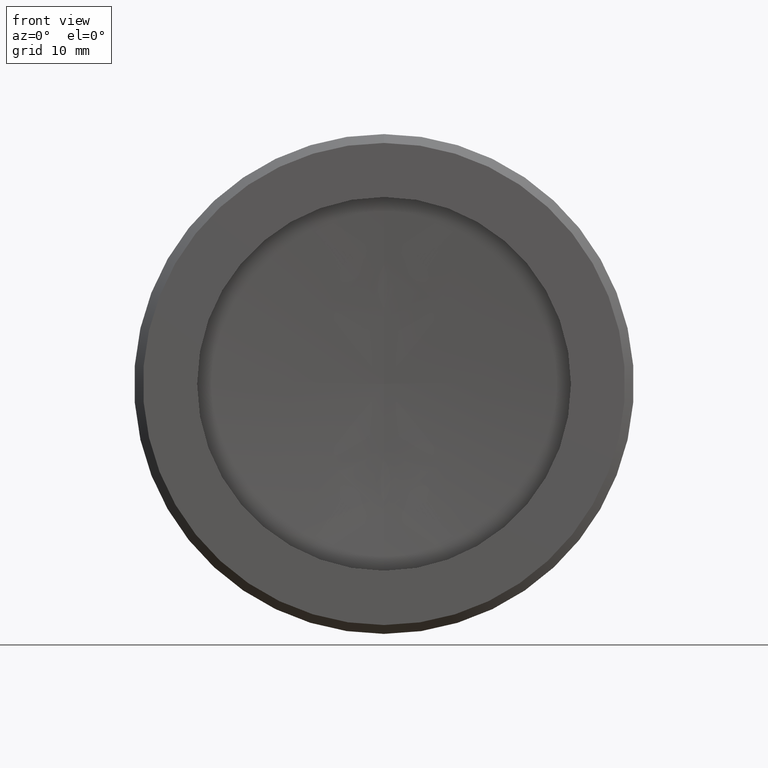
[diagram: clean part render]
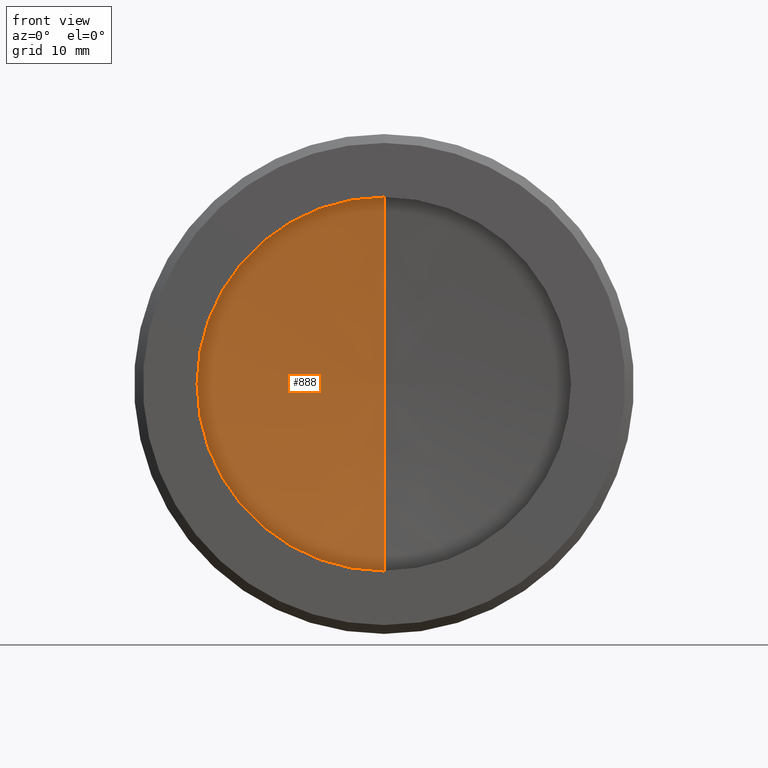
[diagram: same view with one face highlighted and labeled with its STEP entity id]
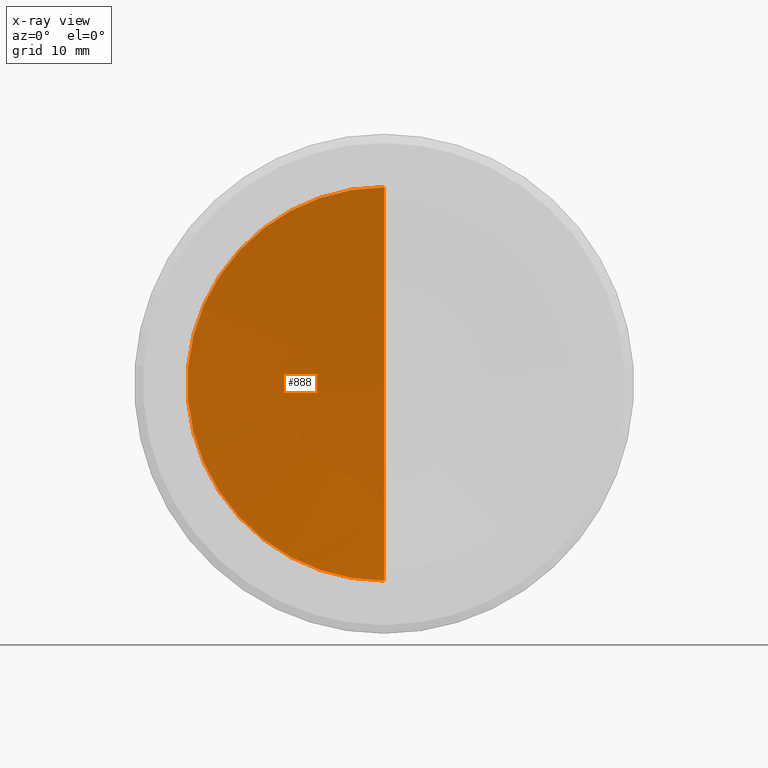
[diagram: x-ray of the same camera — body ghosted, the highlighted face saturated]
A machine part, front view. The second image highlights one B-rep face of the part: STEP entity #888.
The next image is the same camera in x-ray: the body ghosted, the highlighted face saturated — about 0% of this face is hidden behind the body in this view.
In plain terms, the highlighted spherical surface has radius 209 mm.
Its self-contained STEP definition (entity closure, byte-faithful):
#133 = AXIS2_PLACEMENT_3D ( 'NONE', #1697, #1160, #466 ) ;
#283 = VERTEX_POINT ( 'NONE', #1210 ) ;
#353 = VERTEX_POINT ( 'NONE', #1666 ) ;
#361 = ORIENTED_EDGE ( 'NONE', *, *, #680, .F. ) ;
#466 = DIRECTION ( 'NONE',  ( 1.328017972039660468E-16, -1.328017972039660468E-16, -1.000000000000000000 ) ) ;
#680 = EDGE_CURVE ( 'NONE', #283, #353, #1083, .T. ) ;
#775 = AXIS2_PLACEMENT_3D ( 'NONE', #1609, #1238, #832 ) ;
#832 = DIRECTION ( 'NONE',  ( 0.000000000000000000, 1.734723475976806601E-16, 1.000000000000000000 ) ) ;
#873 = ORIENTED_EDGE ( 'NONE', *, *, #1180, .F. ) ;
#888 = ADVANCED_FACE ( 'NONE', ( #1323 ), #1086, .F. ) ;
#897 = CIRCLE ( 'NONE', #133, 209.0000000000000568 ) ;
#1083 = CIRCLE ( 'NONE', #775, 20.00000000000000711 ) ;
#1086 = SPHERICAL_SURFACE ( 'NONE', #1599, 209.0000000000000000 ) ;
#1160 = DIRECTION ( 'NONE',  ( -1.000000000000000000, -9.897506743673268848E-16, -1.363424677225496542E-16 ) ) ;
#1180 = EDGE_CURVE ( 'NONE', #353, #283, #897, .T. ) ;
#1210 = CARTESIAN_POINT ( 'NONE',  ( -8.905217641199440592, -20.49899378910163961, 6.650363943474593142 ) ) ;
#1238 = DIRECTION ( 'NONE',  ( -9.897506743673268848E-16, 1.000000000000000000, -1.231408550798358634E-16 ) ) ;
#1292 = EDGE_LOOP ( 'NONE', ( #873, #361 ) ) ;
#1315 = DIRECTION ( 'NONE',  ( 1.660022465049575893E-17, -1.328017972039660714E-16, -1.000000000000000000 ) ) ;
#1323 = FACE_OUTER_BOUND ( 'NONE', #1292, .T. ) ;
#1348 = DIRECTION ( 'NONE',  ( 9.897506743673268848E-16, -1.000000000000000000, 1.328017972039660961E-16 ) ) ;
#1548 = CARTESIAN_POINT ( 'NONE',  ( -8.905217641199238088, -228.5398551601311965, 26.65036394347461979 ) ) ;
#1599 = AXIS2_PLACEMENT_3D ( 'NONE', #1548, #1348, #1315 ) ;
#1609 = CARTESIAN_POINT ( 'NONE',  ( -8.905217641199442369, -20.49899378910163961, 26.65036394347459847 ) ) ;
#1666 = CARTESIAN_POINT ( 'NONE',  ( -8.905217641199444145, -20.49899378910163961, 46.65036394347460202 ) ) ;
#1697 = CARTESIAN_POINT ( 'NONE',  ( -8.905217641199238088, -228.5398551601311965, 26.65036394347461979 ) ) ;